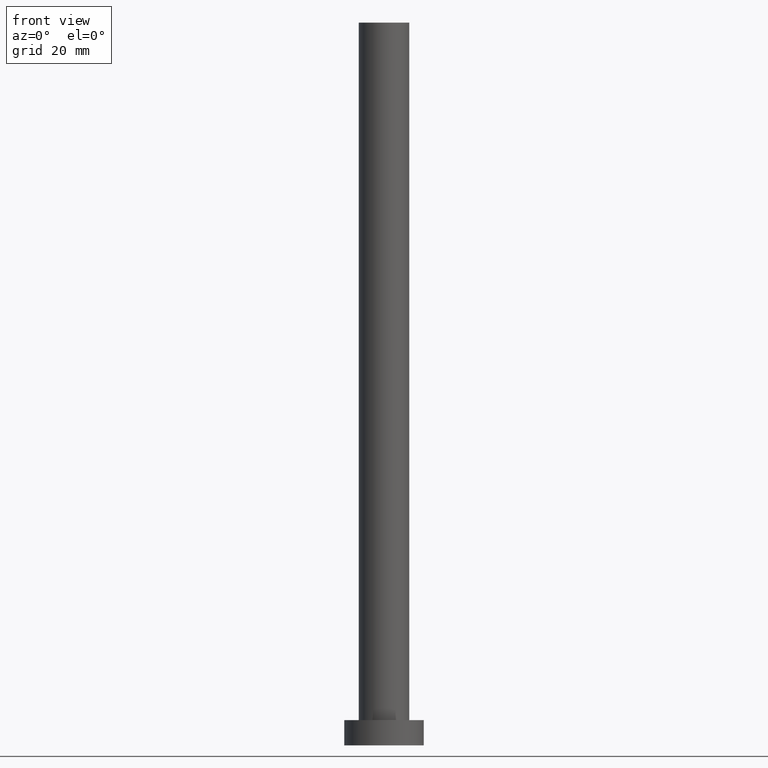
[diagram: clean part render]
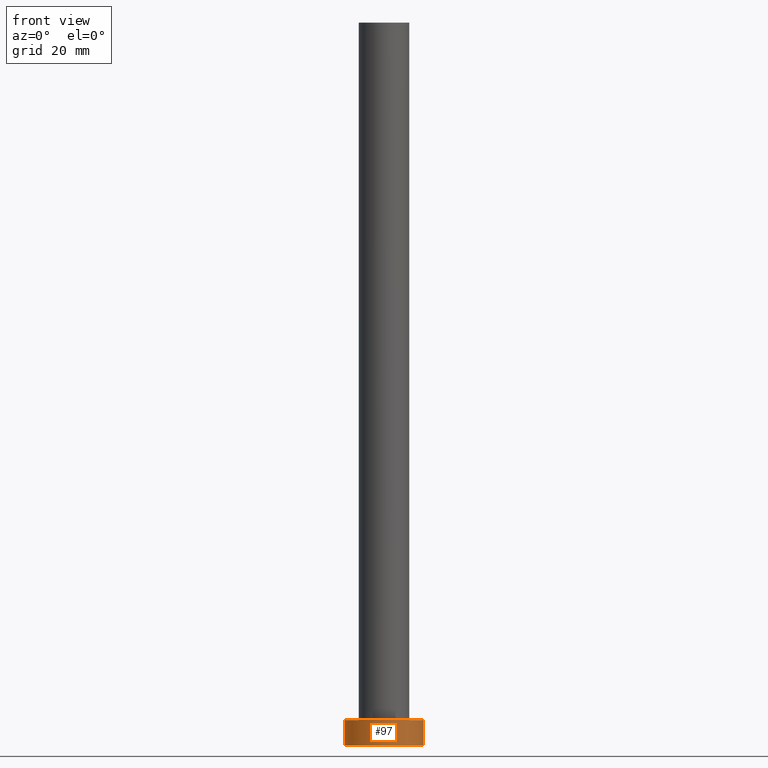
[diagram: same view with one face highlighted and labeled with its STEP entity id]
A machine part, front view. The second image highlights one B-rep face of the part: STEP entity #97.
In plain terms, the highlighted cylindrical surface (partial cylindrical patch) has radius 11 mm, axis along (-0, -0, -1).
Its self-contained STEP definition (entity closure, byte-faithful):
#5 = EDGE_CURVE ( 'NONE', #212, #217, #222, .T. ) ;
#6 = CARTESIAN_POINT ( 'NONE',  ( 11.00000000000000000, 1.347111479062088405E-15, 0.000000000000000000 ) ) ;
#9 = ORIENTED_EDGE ( 'NONE', *, *, #5, .F. ) ;
#14 = AXIS2_PLACEMENT_3D ( 'NONE', #238, #96, #20 ) ;
#20 = DIRECTION ( 'NONE',  ( 1.000000000000000000, 0.000000000000000000, 0.000000000000000000 ) ) ;
#27 = DIRECTION ( 'NONE',  ( 1.000000000000000000, 0.000000000000000000, 0.000000000000000000 ) ) ;
#33 = DIRECTION ( 'NONE',  ( -1.000000000000000000, 0.000000000000000000, 0.000000000000000000 ) ) ;
#40 = CIRCLE ( 'NONE', #14, 11.00000000000000000 ) ;
#51 = DIRECTION ( 'NONE',  ( -0.000000000000000000, -0.000000000000000000, -1.000000000000000000 ) ) ;
#58 = ORIENTED_EDGE ( 'NONE', *, *, #185, .T. ) ;
#65 = FACE_OUTER_BOUND ( 'NONE', #240, .T. ) ;
#67 = AXIS2_PLACEMENT_3D ( 'NONE', #247, #224, #27 ) ;
#70 = EDGE_CURVE ( 'NONE', #217, #177, #149, .T. ) ;
#81 = VECTOR ( 'NONE', #106, 1000.000000000000000 ) ;
#83 = CARTESIAN_POINT ( 'NONE',  ( -11.00000000000000000, 0.000000000000000000, 7.000000000000000000 ) ) ;
#96 = DIRECTION ( 'NONE',  ( 0.000000000000000000, 0.000000000000000000, 1.000000000000000000 ) ) ;
#97 = ADVANCED_FACE ( 'NONE', ( #65 ), #205, .T. ) ;
#104 = EDGE_CURVE ( 'NONE', #212, #133, #220, .T. ) ;
#106 = DIRECTION ( 'NONE',  ( -0.000000000000000000, -0.000000000000000000, -1.000000000000000000 ) ) ;
#123 = CARTESIAN_POINT ( 'NONE',  ( -11.00000000000000000, 0.000000000000000000, 7.000000000000000000 ) ) ;
#131 = AXIS2_PLACEMENT_3D ( 'NONE', #143, #166, #33 ) ;
#132 = CARTESIAN_POINT ( 'NONE',  ( -11.00000000000000000, 0.000000000000000000, 0.000000000000000000 ) ) ;
#133 = VERTEX_POINT ( 'NONE', #132 ) ;
#140 = ORIENTED_EDGE ( 'NONE', *, *, #70, .F. ) ;
#143 = CARTESIAN_POINT ( 'NONE',  ( 0.000000000000000000, 0.000000000000000000, 7.000000000000000000 ) ) ;
#149 = LINE ( 'NONE', #226, #200 ) ;
#161 = ORIENTED_EDGE ( 'NONE', *, *, #104, .T. ) ;
#163 = CARTESIAN_POINT ( 'NONE',  ( 11.00000000000000000, 1.347111479062088405E-15, 7.000000000000000000 ) ) ;
#166 = DIRECTION ( 'NONE',  ( -0.000000000000000000, -0.000000000000000000, -1.000000000000000000 ) ) ;
#177 = VERTEX_POINT ( 'NONE', #6 ) ;
#185 = EDGE_CURVE ( 'NONE', #133, #177, #40, .T. ) ;
#200 = VECTOR ( 'NONE', #51, 1000.000000000000000 ) ;
#205 = CYLINDRICAL_SURFACE ( 'NONE', #131, 11.00000000000000000 ) ;
#212 = VERTEX_POINT ( 'NONE', #83 ) ;
#217 = VERTEX_POINT ( 'NONE', #163 ) ;
#220 = LINE ( 'NONE', #123, #81 ) ;
#222 = CIRCLE ( 'NONE', #67, 11.00000000000000000 ) ;
#224 = DIRECTION ( 'NONE',  ( 0.000000000000000000, 0.000000000000000000, 1.000000000000000000 ) ) ;
#226 = CARTESIAN_POINT ( 'NONE',  ( 11.00000000000000000, 1.347111479062088405E-15, 7.000000000000000000 ) ) ;
#238 = CARTESIAN_POINT ( 'NONE',  ( 0.000000000000000000, 0.000000000000000000, 0.000000000000000000 ) ) ;
#240 = EDGE_LOOP ( 'NONE', ( #140, #9, #161, #58 ) ) ;
#247 = CARTESIAN_POINT ( 'NONE',  ( 0.000000000000000000, 0.000000000000000000, 7.000000000000000000 ) ) ;